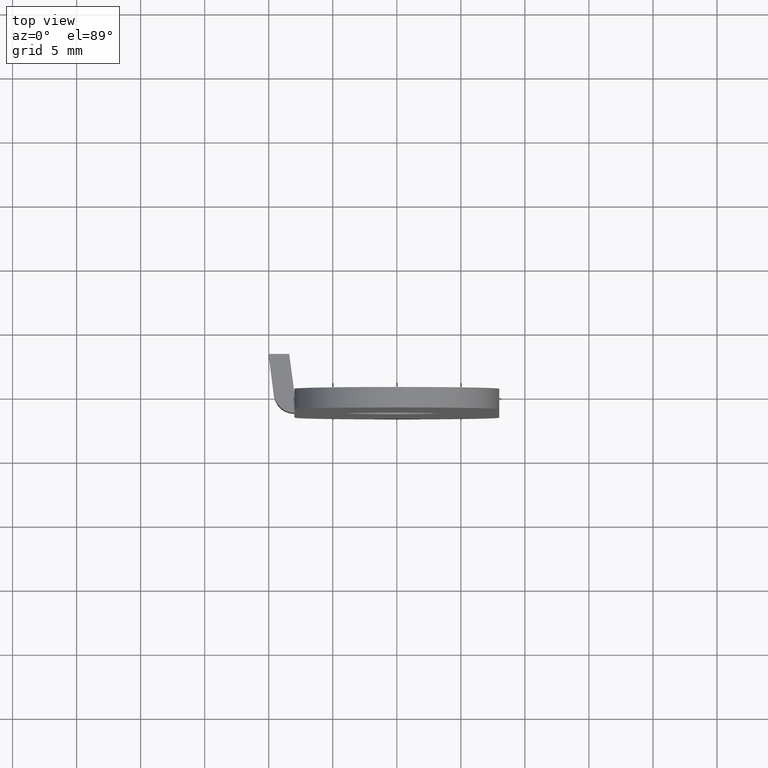
[diagram: clean part render]
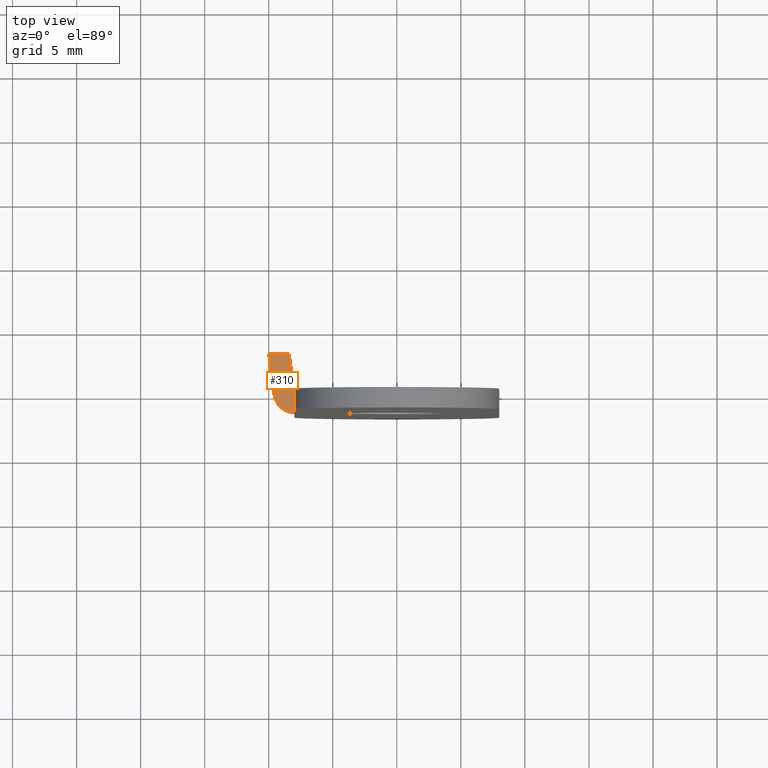
[diagram: same view with one face highlighted and labeled with its STEP entity id]
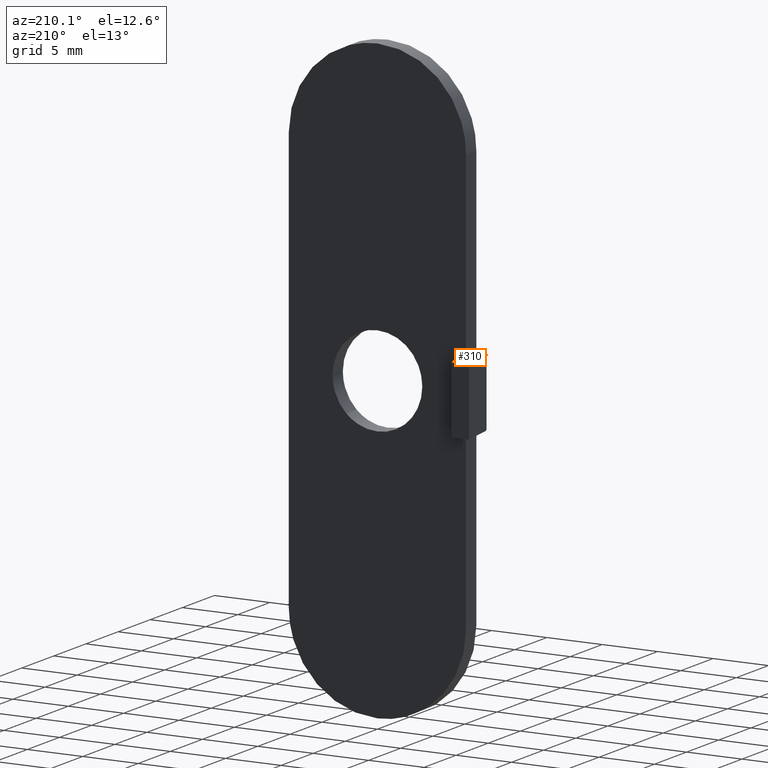
[diagram: same view with one face highlighted and labeled with its STEP entity id]
A machine part, top view. The second image highlights one B-rep face of the part: STEP entity #310.
A second angle (auxiliary view) of the same face is appended — the face is thin or edge-on in the first view.
In plain terms, the highlighted face is a freeform B-spline surface patch.
Its self-contained STEP definition (entity closure, byte-faithful):
#261=CARTESIAN_POINT('',(-10.099899996123609,-1.829774278946591,3.0));
#262=CARTESIAN_POINT('',(-7.900099950232208,-1.829774278946591,3.0));
#263=CARTESIAN_POINT('',(-10.099899996123609,3.229770318455473,3.0));
#264=CARTESIAN_POINT('',(-7.900099950232208,3.229770318455473,3.0));
#265=B_SPLINE_SURFACE_WITH_KNOTS('',1,1,((#261,#263),(#262,#264)),.UNSPECIFIED.,.F.,.F.,.U.,(2,2),(2,2),(0.0,2.199800045891403),(0.0,5.059544597402065),.UNSPECIFIED.);
#266=CARTESIAN_POINT('',(-9.586867277870271,-0.204578206132975,3.0));
#267=VERTEX_POINT('',#266);
#268=CARTESIAN_POINT('',(-10.0,3.0,3.0));
#269=VERTEX_POINT('',#268);
#270=CARTESIAN_POINT('',(-9.586867277870271,-0.204578206132975,3.0));
#271=CARTESIAN_POINT('',(-10.0,3.0,3.0));
#272=QUASI_UNIFORM_CURVE('',1,(#270,#271),.UNSPECIFIED.,.F.,.U.);
#273=EDGE_CURVE('',#267,#269,#272,.T.);
#274=ORIENTED_EDGE('',*,*,#273,.F.);
#275=CARTESIAN_POINT('',(-8.0,-1.600004125000085,3.0));
#276=VERTEX_POINT('',#275);
#277=CARTESIAN_POINT('',(-9.586867277870271,-0.204578206132975,3.0));
#278=CARTESIAN_POINT('',(-9.566953281561156,-0.359589090497325,2.999999999999999));
#279=CARTESIAN_POINT('',(-9.491022679725369,-0.628544498606450,3.0));
#280=CARTESIAN_POINT('',(-9.275554269501662,-0.993060559528498,2.999999999999997));
#281=CARTESIAN_POINT('',(-9.001999854975544,-1.268521695400263,3.000000000000006));
#282=CARTESIAN_POINT('',(-8.670133183435954,-1.467886770933523,2.999999999999989));
#283=CARTESIAN_POINT('',(-8.336600474465611,-1.576753670052306,3.000000000000035));
#284=CARTESIAN_POINT('',(-8.108193150470292,-1.600018611005220,2.999999999999977));
#285=CARTESIAN_POINT('',(-8.0,-1.600004125000085,3.0));
#286=B_SPLINE_CURVE_WITH_KNOTS('',3,(#277,#278,#279,#280,#281,#282,#283,#284,#285),.UNSPECIFIED.,.F.,.U.,(4,1,1,1,1,1,4),(0.000000058569539,0.468845914129515,0.829507329329176,1.262271806914762,1.622938742820413,1.983600158020199,2.308185715951479),.UNSPECIFIED.);
#287=EDGE_CURVE('',#267,#276,#286,.T.);
#288=ORIENTED_EDGE('',*,*,#287,.T.);
#289=CARTESIAN_POINT('',(-8.0,0.000026249934202,3.0));
#290=VERTEX_POINT('',#289);
#291=CARTESIAN_POINT('',(-8.0,0.000026249934202,3.0));
#292=CARTESIAN_POINT('',(-8.0,-1.600004125000085,3.0));
#293=QUASI_UNIFORM_CURVE('',1,(#291,#292),.UNSPECIFIED.,.F.,.U.);
#294=EDGE_CURVE('',#290,#276,#293,.T.);
#295=ORIENTED_EDGE('',*,*,#294,.F.);
#296=CARTESIAN_POINT('',(-8.400002000000001,3.0,3.0));
#297=VERTEX_POINT('',#296);
#298=CARTESIAN_POINT('',(-8.400002000000001,3.0,3.0));
#299=CARTESIAN_POINT('',(-8.0,0.000026249934202,3.0));
#300=QUASI_UNIFORM_CURVE('',1,(#298,#299),.UNSPECIFIED.,.F.,.U.);
#301=EDGE_CURVE('',#297,#290,#300,.T.);
#302=ORIENTED_EDGE('',*,*,#301,.F.);
#303=CARTESIAN_POINT('',(-10.0,3.0,3.0));
#304=CARTESIAN_POINT('',(-8.400002000000001,3.0,3.0));
#305=QUASI_UNIFORM_CURVE('',1,(#303,#304),.UNSPECIFIED.,.F.,.U.);
#306=EDGE_CURVE('',#269,#297,#305,.T.);
#307=ORIENTED_EDGE('',*,*,#306,.F.);
#308=EDGE_LOOP('',(#274,#288,#295,#302,#307));
#309=FACE_OUTER_BOUND('',#308,.T.);
#310=ADVANCED_FACE('',(#309),#265,.T.);